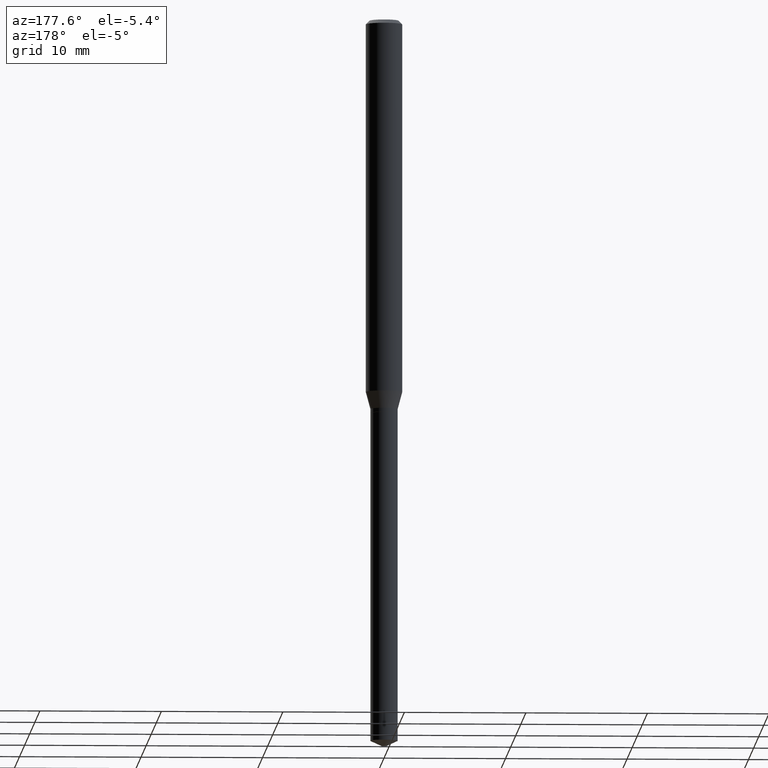
[diagram: clean part render]
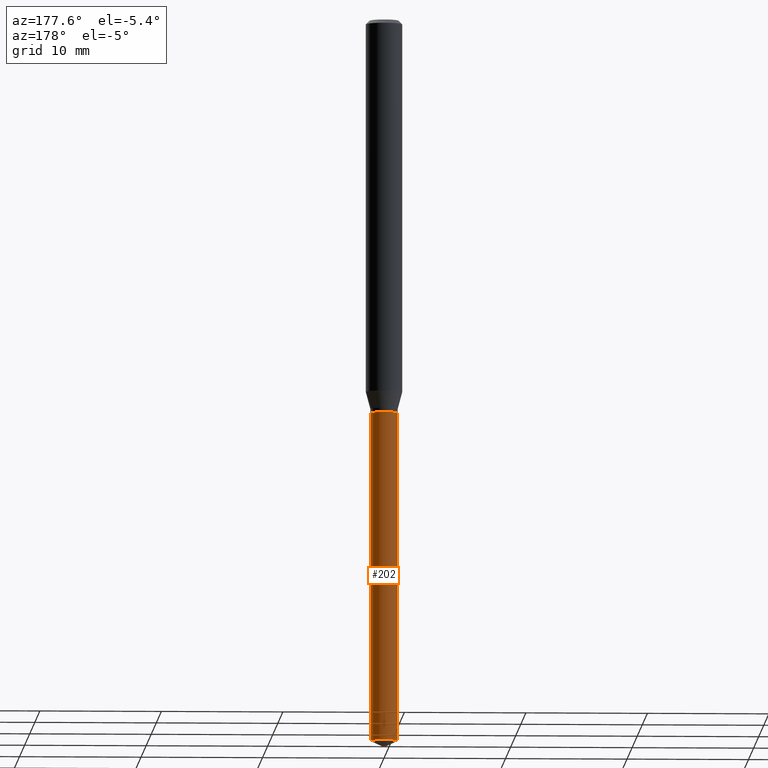
[diagram: same view with one face highlighted and labeled with its STEP entity id]
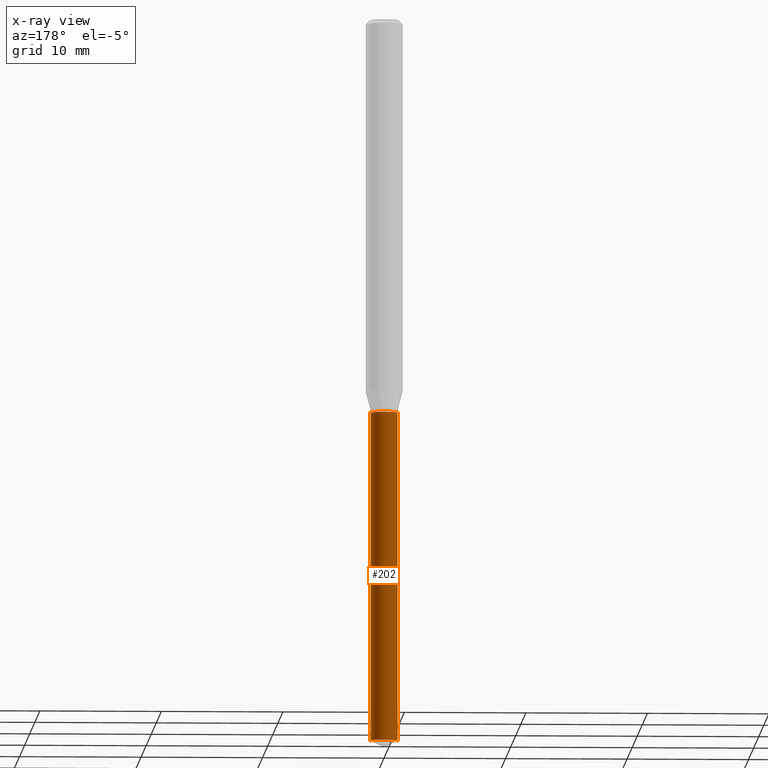
[diagram: x-ray of the same camera — body ghosted, the highlighted face saturated]
A machine part, auxiliary view. The second image highlights one B-rep face of the part: STEP entity #202.
The next image is the same camera in x-ray: the body ghosted, the highlighted face saturated — about 0% of this face is hidden behind the body in this view.
In plain terms, the highlighted cylindrical surface (edge-blend (fillet) strip) has radius 1.1252 mm, axis along (-0, 0, 1).
Its self-contained STEP definition (entity closure, byte-faithful):
#1 = VECTOR ( 'NONE', #345, 39.37007874015748143 ) ;
#5 = EDGE_CURVE ( 'NONE', #24, #148, #385, .T. ) ;
#8 = CARTESIAN_POINT ( 'NONE',  ( -0.04429999999999999910, -4.138963163886592184E-15, -1.275599999999999845 ) ) ;
#24 = VERTEX_POINT ( 'NONE', #471 ) ;
#36 = AXIS2_PLACEMENT_3D ( 'NONE', #432, #236, #403 ) ;
#38 = EDGE_CURVE ( 'NONE', #213, #24, #260, .T. ) ;
#41 = DIRECTION ( 'NONE',  ( -2.445468806185136877E-29, 3.491481338843145188E-15, 1.000000000000000000 ) ) ;
#63 = VERTEX_POINT ( 'NONE', #123 ) ;
#73 = LINE ( 'NONE', #184, #1 ) ;
#81 = DIRECTION ( 'NONE',  ( -2.445468806185136597E-29, 3.491481338843145583E-15, 1.000000000000000000 ) ) ;
#85 = CARTESIAN_POINT ( 'NONE',  ( 5.726169315108353450E-29, -8.175452189858550487E-15, -2.341542570743733176 ) ) ;
#91 = EDGE_CURVE ( 'NONE', #63, #148, #396, .T. ) ;
#123 = CARTESIAN_POINT ( 'NONE',  ( 0.04429999999999999910, -4.763078842449818086E-15, -1.275599999999999845 ) ) ;
#137 = FACE_OUTER_BOUND ( 'NONE', #251, .T. ) ;
#148 = VERTEX_POINT ( 'NONE', #274 ) ;
#182 = ORIENTED_EDGE ( 'NONE', *, *, #91, .F. ) ;
#184 = CARTESIAN_POINT ( 'NONE',  ( 0.04429999999999999910, -4.763078842449818086E-15, -1.275599999999999845 ) ) ;
#190 = VECTOR ( 'NONE', #41, 39.37007874015748143 ) ;
#202 = ADVANCED_FACE ( 'NONE', ( #137 ), #368, .T. ) ;
#205 = AXIS2_PLACEMENT_3D ( 'NONE', #85, #81, #363 ) ;
#213 = VERTEX_POINT ( 'NONE', #446 ) ;
#218 = ORIENTED_EDGE ( 'NONE', *, *, #38, .T. ) ;
#236 = DIRECTION ( 'NONE',  ( -2.445468806185136597E-29, 3.491481338843145583E-15, 1.000000000000000000 ) ) ;
#251 = EDGE_LOOP ( 'NONE', ( #218, #369, #182, #299 ) ) ;
#260 = CIRCLE ( 'NONE', #205, 0.04429999999999999910 ) ;
#274 = CARTESIAN_POINT ( 'NONE',  ( -0.04429999999999999910, -5.999822460901709912E-15, -1.275599999999999845 ) ) ;
#294 = DIRECTION ( 'NONE',  ( -2.445468806185136597E-29, 3.491481338843145583E-15, 1.000000000000000000 ) ) ;
#299 = ORIENTED_EDGE ( 'NONE', *, *, #452, .F. ) ;
#328 = DIRECTION ( 'NONE',  ( 1.000000000000000000, -6.982962677686269077E-15, 0.000000000000000000 ) ) ;
#345 = DIRECTION ( 'NONE',  ( -2.445468806185136877E-29, 3.491481338843145188E-15, 1.000000000000000000 ) ) ;
#363 = DIRECTION ( 'NONE',  ( 1.000000000000000000, -6.982962677686269077E-15, 0.000000000000000000 ) ) ;
#368 = CYLINDRICAL_SURFACE ( 'NONE', #415, 0.04429999999999999910 ) ;
#369 = ORIENTED_EDGE ( 'NONE', *, *, #5, .T. ) ;
#385 = LINE ( 'NONE', #8, #190 ) ;
#396 = CIRCLE ( 'NONE', #36, 0.04429999999999999910 ) ;
#403 = DIRECTION ( 'NONE',  ( 1.000000000000000000, -6.982962677686269077E-15, 0.000000000000000000 ) ) ;
#415 = AXIS2_PLACEMENT_3D ( 'NONE', #444, #294, #328 ) ;
#432 = CARTESIAN_POINT ( 'NONE',  ( 3.119440009169759514E-29, -4.453733595828316609E-15, -1.275599999999999845 ) ) ;
#444 = CARTESIAN_POINT ( 'NONE',  ( 3.119440009169759514E-29, -4.453733595828316609E-15, -1.275599999999999845 ) ) ;
#446 = CARTESIAN_POINT ( 'NONE',  ( 0.04430000000000000604, -8.484797436480053541E-15, -2.341542570743733176 ) ) ;
#452 = EDGE_CURVE ( 'NONE', #213, #63, #73, .T. ) ;
#471 = CARTESIAN_POINT ( 'NONE',  ( -0.04430000000000000604, -7.860681757916827639E-15, -2.341542570743733176 ) ) ;